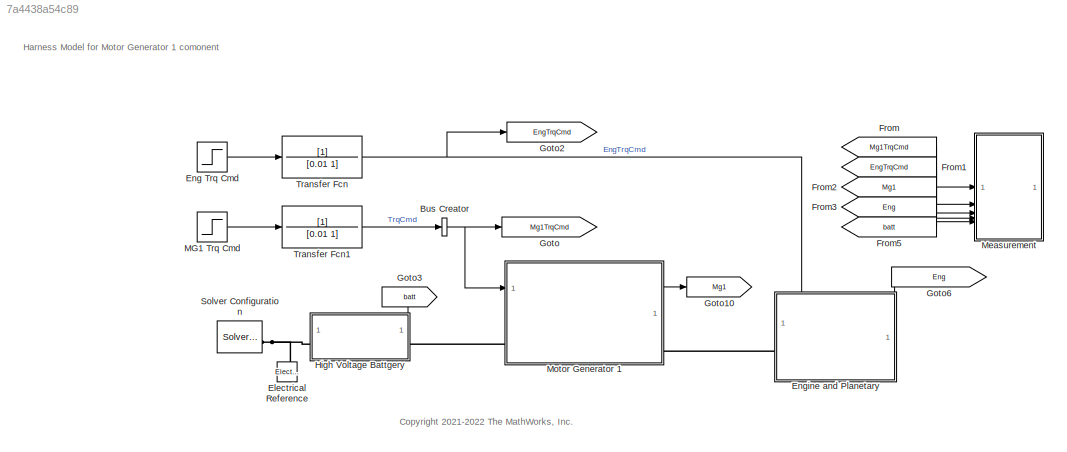
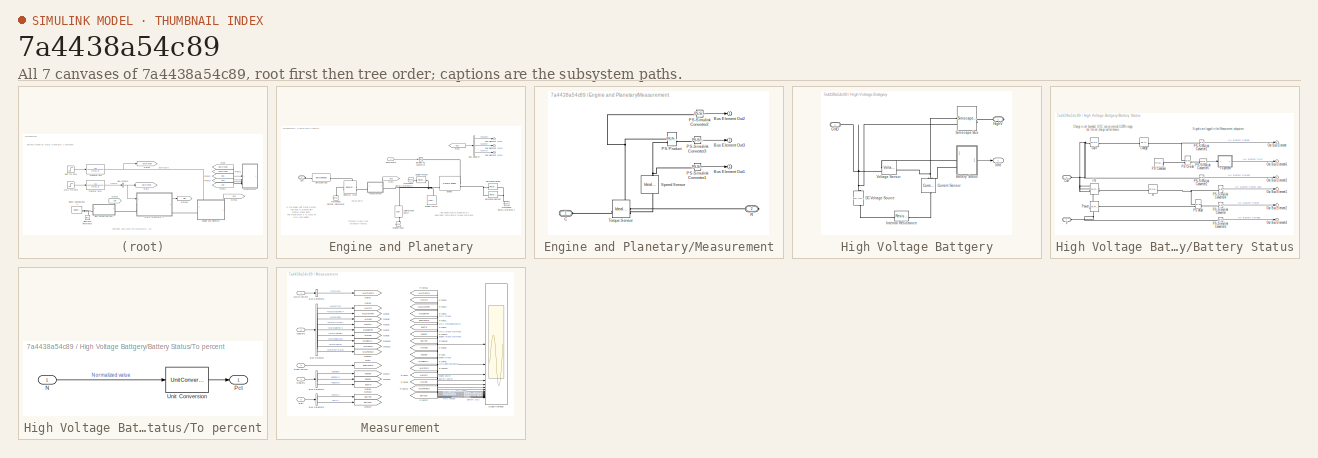
[diagram: thumbnail index - all 7 canvases of the model, root first then tree order]
MODEL mdl_7a4438a54c89
KIND model
CONFIG AbsTol = 1e-3
CONFIG EnableMultiTasking = off
CONFIG FixedStep = auto
CONFIG MaxStep = auto
CONFIG MinStep = auto
CONFIG PreLoadFcn = MotorGenerator1_Component_harness_setup\n
CONFIG RelTol = 1e-3
CONFIG SampleTimeConstraint = Unconstrained
CONFIG SolverName = daessc
CONFIG StartTime = 0.0
CONFIG StopTime = 20
BLOCK [BusCreator] Bus Creator
  DisplayOption = bar
  InheritFromInputs = on
  Inputs = 1
BLOCK [Reference] Electrical Reference  REF=fl_lib/Electrical/Electrical Elements/Electrical Reference
  SourceBlock = fl_lib/Electrical/Electrical Elements/Electrical Reference
  SourceType = Electrical Reference
BLOCK [Step] Eng Trq Cmd
  After = 0
  AttributesFormatString = Before %<Before>\nTime %<Time>\nAfter %<After>
  Before = 100
  NameLocation = left
  SampleTime = 0
  Time = 10
BLOCK [SubSystem] Engine and Planetary
  PortSchema = {"entries":[{"content":{"sides":[{"content":{"connectorIds":["LConn1"]},"type":"ConnectorPlacement.EquallySpacedRectSide","uuid":"98e473f2-6fb6-4bf2-93a0-47b50a56d31a"},{"content":{"connectorIds":[],"side":"RIGHT"},"type":"ConnectorPlacement.EquallySpacedRectSide","uuid":"e7c78de6-faab-4a88-b22a-7c9a139264de"},{"content":{"connectorIds":["In1","Out1"],"side":"TOP"},"type":"ConnectorPlacement.Equal...<+249ch>
BLOCK [Outport] Engine and Planetary/Bus Element Out1
  AttributesFormatString = %<Unit>
BLOCK [Outport] Engine and Planetary/Bus Element Out2
  AttributesFormatString = %<Unit>
BLOCK [Outport] Engine and Planetary/Bus Element Out3
  AttributesFormatString = %<Unit>
BLOCK [BusSelector] Engine and Planetary/Bus Selector
  OutputSignals = EngSpd,EngPwr,EngTrq
BLOCK [Inport] Engine and Planetary/EngTrqCmd
  NameLocation = left
BLOCK [Reference] Engine and Planetary/Engine  REF=sdl_lib/Engines & Motors/Generic Engine
  SourceBlock = sdl_lib/Engines & Motors/Generic Engine
  SourceType = Generic Engine
BLOCK [Reference] Engine and Planetary/Engine Friction  REF=fl_lib/Mechanical/Rotational Elements/Rotational Damper
  SourceBlock = fl_lib/Mechanical/Rotational Elements/Rotational Damper
  SourceType = Rotational Damper
BLOCK [Reference] Engine and Planetary/Engine Inertia  REF=fl_lib/Mechanical/Rotational Elements/Inertia
  AttributesFormatString = %<inertia> (%<inertia_unit>)\n%<w> (%<w_unit>)\nPriority: %<w_priority>
  SourceBlock = fl_lib/Mechanical/Rotational Elements/Inertia
  SourceType = Inertia
BLOCK [Reference] Engine and Planetary/Flywheel Case  REF=fl_lib/Mechanical/Rotational Elements/Mechanical
Rotational Reference
  SourceBlock = fl_lib/Mechanical/Rotational Elements/Mechanical\nRotational Reference
  SourceType = Mechanical\nRotational Reference
BLOCK [From] Engine and Planetary/From
  GotoTag = Eng
BLOCK [Goto] Engine and Planetary/Goto
  GotoTag = Eng
BLOCK [SubSystem] Engine and Planetary/Measurement
  PortSchema = {"entries":[{"content":{"sides":[{"content":{"connectorIds":["LConn1"]},"type":"ConnectorPlacement.EquallySpacedRectSide","uuid":"98e473f2-6fb6-4bf2-93a0-47b50a56d31a"},{"content":{"connectorIds":["RConn1"],"side":"RIGHT"},"type":"ConnectorPlacement.EquallySpacedRectSide","uuid":"e7c78de6-faab-4a88-b22a-7c9a139264de"},{"content":{"connectorIds":["Out1"],"side":"TOP"},"type":"ConnectorPlacement.Equ...<+251ch>
BLOCK [Outport] Engine and Planetary/Measurement/Bus Element Out1
  AttributesFormatString = %<Unit>
BLOCK [Outport] Engine and Planetary/Measurement/Bus Element Out2
  AttributesFormatString = %<Unit>
BLOCK [Outport] Engine and Planetary/Measurement/Bus Element Out3
  AttributesFormatString = %<Unit>
BLOCK [PMIOPort] Engine and Planetary/Measurement/C
  Side = Left
BLOCK [Reference] Engine and Planetary/Measurement/PS Product  REF=fl_lib/Physical Signals/Functions/PS Product
  SourceBlock = fl_lib/Physical Signals/Functions/PS Product
  SourceType = PS Product
BLOCK [Reference] Engine and Planetary/Measurement/PS-Simulink Converter1  REF=nesl_utility/PS-Simulink
Converter
  AttributesFormatString = %<Unit>
  SourceBlock = nesl_utility/PS-Simulink\nConverter
  SourceType = PS-Simulink\nConverter
BLOCK [Reference] Engine and Planetary/Measurement/PS-Simulink Converter2  REF=nesl_utility/PS-Simulink
Converter
  AttributesFormatString = %<Unit>
  SourceBlock = nesl_utility/PS-Simulink\nConverter
  SourceType = PS-Simulink\nConverter
BLOCK [Reference] Engine and Planetary/Measurement/PS-Simulink Converter3  REF=nesl_utility/PS-Simulink
Converter
  AttributesFormatString = %<Unit>
  SourceBlock = nesl_utility/PS-Simulink\nConverter
  SourceType = PS-Simulink\nConverter
BLOCK [PMIOPort] Engine and Planetary/Measurement/R
  Port = 2
  Side = Right
BLOCK [Reference] Engine and Planetary/Measurement/Speed Sensor  REF=fl_lib/Mechanical/Mechanical Sensors/Ideal Rotational
Motion Sensor
  NameLocation = left
  SourceBlock = fl_lib/Mechanical/Mechanical Sensors/Ideal Rotational\nMotion Sensor
  SourceType = Ideal Rotational\nMotion Sensor
BLOCK [Reference] Engine and Planetary/Measurement/Torque Sensor  REF=fl_lib/Mechanical/Mechanical Sensors/Ideal Torque Sensor
  SourceBlock = fl_lib/Mechanical/Mechanical Sensors/Ideal Torque Sensor
  SourceType = Ideal Torque Sensor
BLOCK [Reference] Engine and Planetary/Mechanical Rotational Reference  REF=fl_lib/Mechanical/Rotational Elements/Mechanical
Rotational Reference
  NameLocation = left
  SourceBlock = fl_lib/Mechanical/Rotational Elements/Mechanical\nRotational Reference
  SourceType = Mechanical\nRotational Reference
BLOCK [Reference] Engine and Planetary/Mechanical Rotational Reference 1  REF=fl_lib/Mechanical/Rotational Elements/Mechanical
Rotational Reference
  SourceBlock = fl_lib/Mechanical/Rotational Elements/Mechanical\nRotational Reference
  SourceType = Mechanical\nRotational Reference
BLOCK [Reference] Engine and Planetary/Mechanical Rotational Reference 2  REF=fl_lib/Mechanical/Rotational Elements/Mechanical
Rotational Reference
  NameLocation = left
  SourceBlock = fl_lib/Mechanical/Rotational Elements/Mechanical\nRotational Reference
  SourceType = Mechanical\nRotational Reference
BLOCK [Reference] Engine and Planetary/Planetary Gear  REF=sdl_lib/Gears/Planetary Gear
  NameLocation = top
  SourceBlock = sdl_lib/Gears/Planetary Gear
  SourceType = Planetary Gear
BLOCK [Reference] Engine and Planetary/Rotational Damper  REF=fl_lib/Mechanical/Rotational Elements/Rotational Damper
  SourceBlock = fl_lib/Mechanical/Rotational Elements/Rotational Damper
  SourceType = Rotational Damper
BLOCK [Reference] Engine and Planetary/Rotational Spring  REF=fl_lib/Mechanical/Rotational Elements/Rotational Spring
  AttributesFormatString = Deformation priority: %<phi_priority>
  NameLocation = top
  SourceBlock = fl_lib/Mechanical/Rotational Elements/Rotational Spring
  SourceType = Rotational Spring
BLOCK [SimscapeBus] Engine and Planetary/Simscape Bus
  ConnectionType = Bus: Bus_Rotational
  HierarchyStrings = AngSpd
BLOCK [Reference] Engine and Planetary/Simulink-PS Converter  REF=nesl_utility/Simulink-PS
Converter
  AttributesFormatString = %<Unit>
  SourceBlock = nesl_utility/Simulink-PS\nConverter
  SourceType = Simulink-PS\nConverter
BLOCK [PMIOPort] Engine and Planetary/Sun
  Side = Left
BLOCK [Reference] Engine and Planetary/Unidirectional Clutch  REF=sdl_lib/Clutches/Unidirectional
Clutch
  AttributesFormatString = %<initial_state_locked>
  NameLocation = left
  SourceBlock = sdl_lib/Clutches/Unidirectional\nClutch
  SourceType = Unidirectional\nClutch
BLOCK [From] From
  GotoTag = Mg1TrqCmd
  NameLocation = left
BLOCK [From] From1
  GotoTag = EngTrqCmd
  NameLocation = left
BLOCK [From] From2
  GotoTag = Mg1
  NameLocation = left
BLOCK [From] From3
  GotoTag = Eng
  NameLocation = left
BLOCK [From] From5
  GotoTag = batt
  NameLocation = left
BLOCK [Goto] Goto
  GotoTag = Mg1TrqCmd
  NameLocation = top
BLOCK [Goto] Goto10
  GotoTag = Mg1
  NameLocation = top
BLOCK [Goto] Goto2
  GotoTag = EngTrqCmd
  NameLocation = right
BLOCK [Goto] Goto3
  GotoTag = batt
  NameLocation = top
BLOCK [Goto] Goto6
  GotoTag = Eng
BLOCK [SubSystem] High Voltage Battgery
  PortSchema = {"entries":[{"content":{"sides":[{"content":{"connectorIds":["LConn1"]},"type":"ConnectorPlacement.EquallySpacedRectSide","uuid":"8acd7e9a-bb08-4de6-aa14-0989ebba81b9"},{"content":{"connectorIds":["RConn1"],"side":"RIGHT"},"type":"ConnectorPlacement.EquallySpacedRectSide","uuid":"f80e1afc-966f-4d6b-84f9-f0b60dd6f20c"},{"content":{"connectorIds":["Out1"],"side":"TOP"},"type":"ConnectorPlacement.Equ...<+251ch>
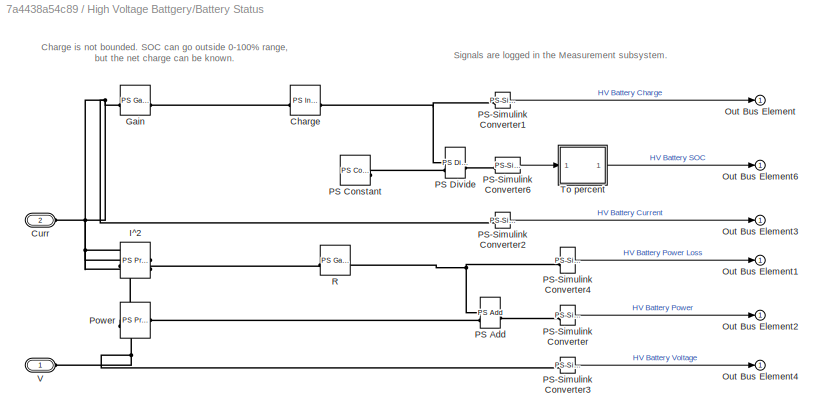
BLOCK [SubSystem] High Voltage Battgery/Battery Status
BLOCK [Reference] High Voltage Battgery/Battery Status/Charge  REF=fl_lib/Physical Signals/Linear Operators/PS Integrator
  AttributesFormatString = %<x0> [%<x0_unit>]
  SourceBlock = fl_lib/Physical Signals/Linear Operators/PS Integrator
  SourceType = PS Integrator
BLOCK [PMIOPort] High Voltage Battgery/Battery Status/Curr
  Port = 2
  Side = Left
BLOCK [Reference] High Voltage Battgery/Battery Status/Gain  REF=fl_lib/Physical Signals/Functions/PS Gain
  AttributesFormatString = %<gain>
  SourceBlock = fl_lib/Physical Signals/Functions/PS Gain
  SourceType = PS Gain
BLOCK [Reference] High Voltage Battgery/Battery Status/I^2  REF=fl_lib/Physical Signals/Functions/PS Product
  SourceBlock = fl_lib/Physical Signals/Functions/PS Product
  SourceType = PS Product
BLOCK [Outport] High Voltage Battgery/Battery Status/Out Bus Element
  AttributesFormatString = %<Unit>
BLOCK [Outport] High Voltage Battgery/Battery Status/Out Bus Element1
  AttributesFormatString = %<Unit>
BLOCK [Outport] High Voltage Battgery/Battery Status/Out Bus Element2
  AttributesFormatString = %<Unit>
BLOCK [Outport] High Voltage Battgery/Battery Status/Out Bus Element3
  AttributesFormatString = %<Unit>
BLOCK [Outport] High Voltage Battgery/Battery Status/Out Bus Element4
  AttributesFormatString = %<Unit>
BLOCK [Outport] High Voltage Battgery/Battery Status/Out Bus Element6
  AttributesFormatString = %<Unit>
BLOCK [Reference] High Voltage Battgery/Battery Status/PS Add  REF=fl_lib/Physical Signals/Functions/PS Add
  SourceBlock = fl_lib/Physical Signals/Functions/PS Add
  SourceType = PS Add
BLOCK [Reference] High Voltage Battgery/Battery Status/PS Constant  REF=fl_lib/Physical Signals/Sources/PS Constant
  AttributesFormatString = %<constant> [%<constant_unit>]
  NameLocation = left
  SourceBlock = fl_lib/Physical Signals/Sources/PS Constant
  SourceType = PS Constant
BLOCK [Reference] High Voltage Battgery/Battery Status/PS Divide  REF=fl_lib/Physical Signals/Functions/PS Divide
  SourceBlock = fl_lib/Physical Signals/Functions/PS Divide
  SourceType = PS Divide
BLOCK [Reference] High Voltage Battgery/Battery Status/PS-Simulink Converter  REF=nesl_utility/PS-Simulink
Converter
  AttributesFormatString = %<Unit>
  SourceBlock = nesl_utility/PS-Simulink\nConverter
  SourceType = PS-Simulink\nConverter
BLOCK [Reference] High Voltage Battgery/Battery Status/PS-Simulink Converter1  REF=nesl_utility/PS-Simulink
Converter
  AttributesFormatString = %<Unit>
  SourceBlock = nesl_utility/PS-Simulink\nConverter
  SourceType = PS-Simulink\nConverter
BLOCK [Reference] High Voltage Battgery/Battery Status/PS-Simulink Converter2  REF=nesl_utility/PS-Simulink
Converter
  AttributesFormatString = %<Unit>
  SourceBlock = nesl_utility/PS-Simulink\nConverter
  SourceType = PS-Simulink\nConverter
BLOCK [Reference] High Voltage Battgery/Battery Status/PS-Simulink Converter3  REF=nesl_utility/PS-Simulink
Converter
  AttributesFormatString = %<Unit>
  SourceBlock = nesl_utility/PS-Simulink\nConverter
  SourceType = PS-Simulink\nConverter
BLOCK [Reference] High Voltage Battgery/Battery Status/PS-Simulink Converter4  REF=nesl_utility/PS-Simulink
Converter
  AttributesFormatString = %<Unit>
  SourceBlock = nesl_utility/PS-Simulink\nConverter
  SourceType = PS-Simulink\nConverter
BLOCK [Reference] High Voltage Battgery/Battery Status/PS-Simulink Converter6  REF=nesl_utility/PS-Simulink
Converter
  AttributesFormatString = %<Unit>
  SourceBlock = nesl_utility/PS-Simulink\nConverter
  SourceType = PS-Simulink\nConverter
BLOCK [Reference] High Voltage Battgery/Battery Status/Power  REF=fl_lib/Physical Signals/Functions/PS Product
  SourceBlock = fl_lib/Physical Signals/Functions/PS Product
  SourceType = PS Product
BLOCK [Reference] High Voltage Battgery/Battery Status/R  REF=fl_lib/Physical Signals/Functions/PS Gain
  AttributesFormatString = %<gain> [%<gain_unit>]
  SourceBlock = fl_lib/Physical Signals/Functions/PS Gain
  SourceType = PS Gain
BLOCK [SubSystem] High Voltage Battgery/Battery Status/To percent
  ShowPortLabels = FromPortBlockName
BLOCK [Inport] High Voltage Battgery/Battery Status/To percent/N
BLOCK [Outport] High Voltage Battgery/Battery Status/To percent/Pct
  AttributesFormatString = %<Unit>
  Unit = %
BLOCK [UnitConversion] High Voltage Battgery/Battery Status/To percent/Unit Conversion
BLOCK [PMIOPort] High Voltage Battgery/Battery Status/V
  Side = Left
BLOCK [Reference] High Voltage Battgery/Current Sensor  REF=fl_lib/Electrical/Electrical Sensors/Current Sensor
  NameLocation = right
  SourceBlock = fl_lib/Electrical/Electrical Sensors/Current Sensor
  SourceType = Current Sensor
BLOCK [Reference] High Voltage Battgery/DC Voltage Source  REF=fl_lib/Electrical/Electrical Sources/DC Voltage Source
  AttributesFormatString = %<v0> [%<v0_unit>]
  NameLocation = right
  SourceBlock = fl_lib/Electrical/Electrical Sources/DC Voltage Source
  SourceType = DC Voltage Source
BLOCK [PMIOPort] High Voltage Battgery/GND
  Side = Left
BLOCK [PMIOPort] High Voltage Battgery/HighV
  Port = 2
  Side = Right
BLOCK [Outport] High Voltage Battgery/Info
BLOCK [Reference] High Voltage Battgery/Internal Resistance  REF=fl_lib/Electrical/Electrical Elements/Resistor
  AttributesFormatString = %<R> [%<R_unit>]
  SourceBlock = fl_lib/Electrical/Electrical Elements/Resistor
  SourceType = Resistor
BLOCK [SimscapeBus] High Voltage Battgery/Simscape Bus
  AttributesFormatString = %<ConnectionType>
  ConnectionType = Bus: Bus_HighVoltage
  HierarchyStrings = Plus;Minus
BLOCK [Reference] High Voltage Battgery/Voltage Sensor  REF=fl_lib/Electrical/Electrical Sensors/Voltage Sensor
  SourceBlock = fl_lib/Electrical/Electrical Sensors/Voltage Sensor
  SourceType = Voltage Sensor
BLOCK [Step] MG1 Trq Cmd
  After = -5
  AttributesFormatString = Before %<Before>\nTime %<Time>\nAfter %<After>
  NameLocation = left
  SampleTime = 0
  Time = 15
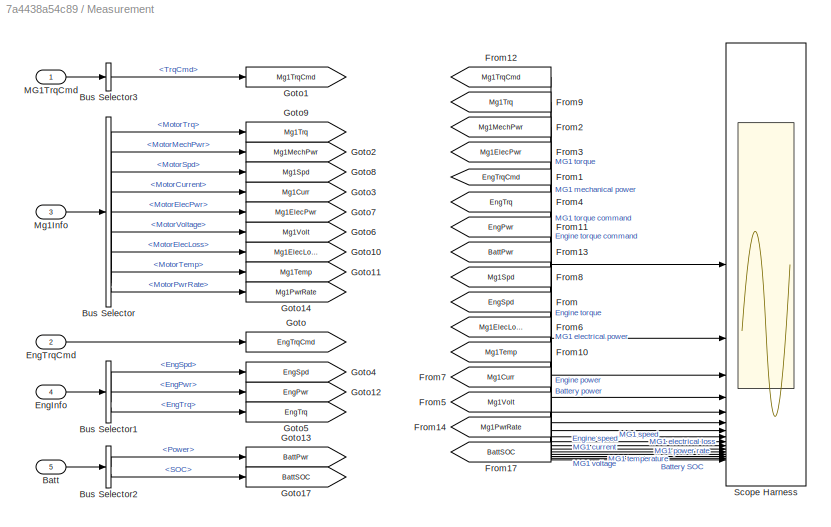
BLOCK [SubSystem] Measurement
BLOCK [Inport] Measurement/Batt
  NameLocation = left
  Port = 5
BLOCK [BusSelector] Measurement/Bus Selector
  OutputSignals = MotorTrq,MotorMechPwr,MotorSpd,MotorCurrent,MotorElecPwr,MotorVoltage,MotorElecLoss,MotorTemp,MotorPwrRate
BLOCK [BusSelector] Measurement/Bus Selector1
  OutputSignals = EngSpd,EngPwr,EngTrq
BLOCK [BusSelector] Measurement/Bus Selector2
  OutputSignals = Power,SOC
BLOCK [BusSelector] Measurement/Bus Selector3
  OutputSignals = TrqCmd
BLOCK [Inport] Measurement/EngInfo
  NameLocation = left
  Port = 4
BLOCK [Inport] Measurement/EngTrqCmd
  NameLocation = left
  Port = 2
BLOCK [From] Measurement/From
  GotoTag = EngSpd
  NameLocation = left
BLOCK [From] Measurement/From1
  GotoTag = EngTrqCmd
  NameLocation = left
BLOCK [From] Measurement/From10
  GotoTag = Mg1Temp
  NameLocation = left
BLOCK [From] Measurement/From11
  GotoTag = EngPwr
  NameLocation = left
BLOCK [From] Measurement/From12
  GotoTag = Mg1TrqCmd
  NameLocation = left
BLOCK [From] Measurement/From13
  GotoTag = BattPwr
  NameLocation = left
BLOCK [From] Measurement/From14
  GotoTag = Mg1PwrRate
BLOCK [From] Measurement/From17
  GotoTag = BattSOC
  NameLocation = left
BLOCK [From] Measurement/From2
  GotoTag = Mg1MechPwr
  NameLocation = left
BLOCK [From] Measurement/From3
  GotoTag = Mg1ElecPwr
  NameLocation = left
BLOCK [From] Measurement/From4
  GotoTag = EngTrq
  NameLocation = left
BLOCK [From] Measurement/From5
  GotoTag = Mg1Volt
  NameLocation = left
BLOCK [From] Measurement/From6
  GotoTag = Mg1ElecLoss
  NameLocation = left
BLOCK [From] Measurement/From7
  GotoTag = Mg1Curr
  NameLocation = left
BLOCK [From] Measurement/From8
  GotoTag = Mg1Spd
  NameLocation = left
BLOCK [From] Measurement/From9
  GotoTag = Mg1Trq
  NameLocation = left
BLOCK [Goto] Measurement/Goto
  GotoTag = EngTrqCmd
  NameLocation = right
BLOCK [Goto] Measurement/Goto1
  GotoTag = Mg1TrqCmd
  NameLocation = right
BLOCK [Goto] Measurement/Goto10
  GotoTag = Mg1ElecLoss
  NameLocation = right
BLOCK [Goto] Measurement/Goto11
  GotoTag = Mg1Temp
  NameLocation = right
BLOCK [Goto] Measurement/Goto12
  GotoTag = EngPwr
  NameLocation = right
BLOCK [Goto] Measurement/Goto13
  GotoTag = BattPwr
  NameLocation = right
BLOCK [Goto] Measurement/Goto14
  GotoTag = Mg1PwrRate
  NameLocation = right
BLOCK [Goto] Measurement/Goto17
  GotoTag = BattSOC
  NameLocation = right
BLOCK [Goto] Measurement/Goto2
  GotoTag = Mg1MechPwr
  NameLocation = right
BLOCK [Goto] Measurement/Goto3
  GotoTag = Mg1Curr
  NameLocation = right
BLOCK [Goto] Measurement/Goto4
  GotoTag = EngSpd
  NameLocation = right
BLOCK [Goto] Measurement/Goto5
  GotoTag = EngTrq
  NameLocation = right
BLOCK [Goto] Measurement/Goto6
  GotoTag = Mg1Volt
  NameLocation = right
BLOCK [Goto] Measurement/Goto7
  GotoTag = Mg1ElecPwr
  NameLocation = right
BLOCK [Goto] Measurement/Goto8
  GotoTag = Mg1Spd
  NameLocation = right
BLOCK [Goto] Measurement/Goto9
  GotoTag = Mg1Trq
  NameLocation = right
BLOCK [Inport] Measurement/MG1TrqCmd
  NameLocation = left
BLOCK [Inport] Measurement/Mg1Info
  NameLocation = left
  Port = 3
BLOCK [Scope] Measurement/Scope Harness
  Floating = off
  NumInputPorts = 16
  ScopeSpecificationString = Simulink.scopes.TimeScopeBlockCfg('CurrentConfiguration', extmgr.ConfigurationSet(extmgr.Configuration('Core','General UI',true),extmgr.Configuration('Core','Source UI',true),extmgr.Configuration('Sources','WiredSimulink',true),extmgr.Configuration('Visuals','Time Domain',true,'SerializedDisplays',{struct('MinYLimReal','-5.625','MaxYLimReal','0.625','YLabelReal','','MinYLimMag','0.00000','MaxYLimM...<+11999ch>
BLOCK [SubSystem] Motor Generator 1
  PortSchema = {"entries":[{"content":{"sides":[{"content":{"connectorIds":["In1","LConn1"]},"type":"ConnectorPlacement.EquallySpacedRectSide","uuid":"02d16a10-ccfb-4288-a5a1-1144159c5ca2"},{"content":{"connectorIds":["Out1","LConn2"],"side":"RIGHT"},"type":"ConnectorPlacement.EquallySpacedRectSide","uuid":"b2601986-efe5-4f5e-bd54-3f5cb03e9252"},{"content":{"side":"TOP"},"type":"ConnectorPlacement.EquallySpacedR...<+240ch>
  ReferencedSubsystem = MotorDriveUnit_refsub_Basic
  T = initial.MG1_AirTemp_K
  T_eff = motorGenerator1.trq_eff_Nm
  Tc = motorGenerator1.responseTime_s
  Value = motorGenerator1.powerMax_kW
  eff = motorGenerator1.efficiency_pct
  k = motorGenerator1.dampSpringStiffness_Nm_per_rad
  mu_visc = motorGenerator1.dampSpringFriction_Nm_per_rpm
  temperature = initial.MG1_Temperature_K
  thermal_mass = motorGenerator1.thermalMass_J_perK
  torque_max = motorGenerator1.trqMax_Nm
  w_eff = motorGenerator1.spd_eff_rpm
  w_tol = smoothing.MG1_dampSpringVelTol_rpm
BLOCK [Reference] Solver Configuration  REF=nesl_utility/Solver
Configuration
  AttributesFormatString = Local solver %<UseLocalSolver>
  NameLocation = top
  SourceBlock = nesl_utility/Solver\nConfiguration
  SourceType = Solver\nConfiguration
BLOCK [TransferFcn] Transfer Fcn
  Denominator = [0.01 1]
BLOCK [TransferFcn] Transfer Fcn1
  Denominator = [0.01 1]
ANNOTATION (root): <copyright redacted>
ANNOTATION (root): Harness Model for Motor Generator 1 comonent
ANNOTATION Engine and Planetary: Idle speed control should be off when input command is torque command.
ANNOTATION Engine and Planetary: In the power-split hybrid system, ring gear is meshed with counter driven gear. This model omits it to focus on MG1 and engine.
ANNOTATION Engine and Planetary: Prevents crank from rotating in reverse.
ANNOTATION Engine and Planetary: Sprag Clutch
ANNOTATION High Voltage Battgery/Battery Status: Charge is not bounded. SOC can go outside 0-100% range, but the net charge can be known.
ANNOTATION High Voltage Battgery/Battery Status: Signals are logged in the Measurement subsystem.
NET Bus Creator:1 -> Goto:1, Motor Generator 1:1
LINE Eng Trq Cmd:1 -> Transfer Fcn:1
LINE Engine and Planetary/Bus Selector:1 -> Engine and Planetary/Bus Element Out1:1
LINE Engine and Planetary/Bus Selector:2 -> Engine and Planetary/Bus Element Out3:1
LINE Engine and Planetary/Bus Selector:3 -> Engine and Planetary/Bus Element Out2:1
LINE Engine and Planetary/EngTrqCmd:1 -> Engine and Planetary/Simulink-PS Converter:1
LINE Engine and Planetary/From:1 -> Engine and Planetary/Bus Selector:1
LINE Engine and Planetary/Measurement/PS-Simulink Converter1:1 -> Engine and Planetary/Measurement/Bus Element Out1:1
LINE Engine and Planetary/Measurement/PS-Simulink Converter2:1 -> Engine and Planetary/Measurement/Bus Element Out2:1
LINE Engine and Planetary/Measurement/PS-Simulink Converter3:1 -> Engine and Planetary/Measurement/Bus Element Out3:1
LINE Engine and Planetary/Measurement:1 -> Engine and Planetary/Goto:1
LINE Engine and Planetary:1 -> Goto6:1
LINE From1:1 -> Measurement:2
LINE From2:1 -> Measurement:3
LINE From3:1 -> Measurement:4
LINE From5:1 -> Measurement:5
LINE From:1 -> Measurement:1
LINE High Voltage Battgery/Battery Status/PS-Simulink Converter1:1 -> High Voltage Battgery/Battery Status/Out Bus Element:1
LINE High Voltage Battgery/Battery Status/PS-Simulink Converter2:1 -> High Voltage Battgery/Battery Status/Out Bus Element3:1
LINE High Voltage Battgery/Battery Status/PS-Simulink Converter3:1 -> High Voltage Battgery/Battery Status/Out Bus Element4:1
LINE High Voltage Battgery/Battery Status/PS-Simulink Converter4:1 -> High Voltage Battgery/Battery Status/Out Bus Element1:1
LINE High Voltage Battgery/Battery Status/PS-Simulink Converter6:1 -> High Voltage Battgery/Battery Status/To percent:1
LINE High Voltage Battgery/Battery Status/PS-Simulink Converter:1 -> High Voltage Battgery/Battery Status/Out Bus Element2:1
LINE High Voltage Battgery/Battery Status/To percent/N:1 -> High Voltage Battgery/Battery Status/To percent/Unit Conversion:1
LINE High Voltage Battgery/Battery Status/To percent/Unit Conversion:1 -> High Voltage Battgery/Battery Status/To percent/Pct:1
LINE High Voltage Battgery/Battery Status/To percent:1 -> High Voltage Battgery/Battery Status/Out Bus Element6:1
LINE High Voltage Battgery/Battery Status:1 -> High Voltage Battgery/Info:1
LINE High Voltage Battgery:1 -> Goto3:1
LINE MG1 Trq Cmd:1 -> Transfer Fcn1:1
LINE Measurement/Batt:1 -> Measurement/Bus Selector2:1
LINE Measurement/Bus Selector1:1 -> Measurement/Goto4:1
LINE Measurement/Bus Selector1:2 -> Measurement/Goto12:1
LINE Measurement/Bus Selector1:3 -> Measurement/Goto5:1
LINE Measurement/Bus Selector2:1 -> Measurement/Goto13:1
LINE Measurement/Bus Selector2:2 -> Measurement/Goto17:1
LINE Measurement/Bus Selector3:1 -> Measurement/Goto1:1
LINE Measurement/Bus Selector:1 -> Measurement/Goto9:1
LINE Measurement/Bus Selector:2 -> Measurement/Goto2:1
LINE Measurement/Bus Selector:3 -> Measurement/Goto8:1
LINE Measurement/Bus Selector:4 -> Measurement/Goto3:1
LINE Measurement/Bus Selector:5 -> Measurement/Goto7:1
LINE Measurement/Bus Selector:6 -> Measurement/Goto6:1
LINE Measurement/Bus Selector:7 -> Measurement/Goto10:1
LINE Measurement/Bus Selector:8 -> Measurement/Goto11:1
LINE Measurement/Bus Selector:9 -> Measurement/Goto14:1
LINE Measurement/EngInfo:1 -> Measurement/Bus Selector1:1
LINE Measurement/EngTrqCmd:1 -> Measurement/Goto:1
LINE Measurement/From10:1 -> Measurement/Scope Harness:12
LINE Measurement/From11:1 -> Measurement/Scope Harness:7
LINE Measurement/From12:1 -> Measurement/Scope Harness:1
LINE Measurement/From13:1 -> Measurement/Scope Harness:8
LINE Measurement/From14:1 -> Measurement/Scope Harness:15
LINE Measurement/From17:1 -> Measurement/Scope Harness:16
LINE Measurement/From1:1 -> Measurement/Scope Harness:5
LINE Measurement/From2:1 -> Measurement/Scope Harness:3
LINE Measurement/From3:1 -> Measurement/Scope Harness:4
LINE Measurement/From4:1 -> Measurement/Scope Harness:6
LINE Measurement/From5:1 -> Measurement/Scope Harness:14
LINE Measurement/From6:1 -> Measurement/Scope Harness:11
LINE Measurement/From7:1 -> Measurement/Scope Harness:13
LINE Measurement/From8:1 -> Measurement/Scope Harness:9
LINE Measurement/From9:1 -> Measurement/Scope Harness:2
LINE Measurement/From:1 -> Measurement/Scope Harness:10
LINE Measurement/MG1TrqCmd:1 -> Measurement/Bus Selector3:1
LINE Measurement/Mg1Info:1 -> Measurement/Bus Selector:1
LINE Motor Generator 1:1 -> Goto10:1
LINE Transfer Fcn1:1 -> Bus Creator:1
NET Transfer Fcn:1 -> Engine and Planetary:1, Goto2:1
PNET net1: Electrical Reference:LConn1 -- High Voltage Battgery:LConn1 -- Solver Configuration:RConn1
PNET net2: Engine and Planetary/Engine Friction:LConn1 -- Engine and Planetary/Engine Inertia:LConn1 -- Engine and Planetary/Engine:RConn3 -- Engine and Planetary/Measurement:RConn1 -- Engine and Planetary/Unidirectional Clutch:LConn1
PLINE Engine and Planetary/Engine Friction:RConn1 -- Engine and Planetary/Mechanical Rotational Reference 2:LConn1
PLINE Engine and Planetary/Engine:LConn1 -- Engine and Planetary/Simulink-PS Converter:RConn1
PNET net3: Engine and Planetary/Engine:LConn2 -- Engine and Planetary/Rotational Damper:LConn1 -- Engine and Planetary/Rotational Spring:LConn1
PLINE Engine and Planetary/Flywheel Case:LConn1 -- Engine and Planetary/Unidirectional Clutch:RConn1
PLINE Engine and Planetary/Measurement/C:RConn1 -- Engine and Planetary/Measurement/Torque Sensor:RConn1
PNET net4: Engine and Planetary/Measurement/PS Product:LConn1 -- Engine and Planetary/Measurement/PS-Simulink Converter2:LConn1 -- Engine and Planetary/Measurement/Torque Sensor:RConn2
PNET net5: Engine and Planetary/Measurement/PS Product:LConn2 -- Engine and Planetary/Measurement/PS-Simulink Converter1:LConn1 -- Engine and Planetary/Measurement/Speed Sensor:RConn1
PLINE Engine and Planetary/Measurement/PS Product:RConn1 -- Engine and Planetary/Measurement/PS-Simulink Converter3:LConn1
PNET net6: Engine and Planetary/Measurement/R:RConn1 -- Engine and Planetary/Measurement/Speed Sensor:LConn1 -- Engine and Planetary/Measurement/Torque Sensor:LConn1
PLINE Engine and Planetary/Measurement:LConn1 -- Engine and Planetary/Planetary Gear:LConn1
PNET net7: Engine and Planetary/Mechanical Rotational Reference 1:LConn1 -- Engine and Planetary/Rotational Damper:RConn1 -- Engine and Planetary/Rotational Spring:RConn1
PLINE Engine and Planetary/Mechanical Rotational Reference:LConn1 -- Engine and Planetary/Planetary Gear:RConn1
PLINE Engine and Planetary/Planetary Gear:RConn2 -- Engine and Planetary/Simscape Bus:LConn1
PLINE Engine and Planetary/Simscape Bus:RConn1 -- Engine and Planetary/Sun:RConn1
PLINE Engine and Planetary:LConn1 -- Motor Generator 1:LConn2
PLINE High Voltage Battgery/Battery Status/Charge:LConn1 -- High Voltage Battgery/Battery Status/Gain:RConn1
PNET net8: High Voltage Battgery/Battery Status/Charge:RConn1 -- High Voltage Battgery/Battery Status/PS Divide:LConn1 -- High Voltage Battgery/Battery Status/PS-Simulink Converter1:LConn1
PNET net9: High Voltage Battgery/Battery Status/Curr:RConn1 -- High Voltage Battgery/Battery Status/Gain:LConn1 -- High Voltage Battgery/Battery Status/I^2:LConn1 -- High Voltage Battgery/Battery Status/I^2:LConn2 -- High Voltage Battgery/Battery Status/PS-Simulink Converter2:LConn1 -- High Voltage Battgery/Battery Status/Power:LConn2
PLINE High Voltage Battgery/Battery Status/I^2:RConn1 -- High Voltage Battgery/Battery Status/R:LConn1
PNET net10: High Voltage Battgery/Battery Status/PS Add:LConn1 -- High Voltage Battgery/Battery Status/PS-Simulink Converter4:LConn1 -- High Voltage Battgery/Battery Status/R:RConn1
PLINE High Voltage Battgery/Battery Status/PS Add:LConn2 -- High Voltage Battgery/Battery Status/Power:RConn1
PLINE High Voltage Battgery/Battery Status/PS Add:RConn1 -- High Voltage Battgery/Battery Status/PS-Simulink Converter:LConn1
PLINE High Voltage Battgery/Battery Status/PS Constant:RConn1 -- High Voltage Battgery/Battery Status/PS Divide:LConn2
PLINE High Voltage Battgery/Battery Status/PS Divide:RConn1 -- High Voltage Battgery/Battery Status/PS-Simulink Converter6:LConn1
PNET net11: High Voltage Battgery/Battery Status/PS-Simulink Converter3:LConn1 -- High Voltage Battgery/Battery Status/Power:LConn1 -- High Voltage Battgery/Battery Status/V:RConn1
PLINE High Voltage Battgery/Battery Status:LConn1 -- High Voltage Battgery/Voltage Sensor:RConn1
PLINE High Voltage Battgery/Battery Status:LConn2 -- High Voltage Battgery/Current Sensor:RConn1
PLINE High Voltage Battgery/Current Sensor:LConn1 -- High Voltage Battgery/Internal Resistance:RConn1
PNET net12: High Voltage Battgery/Current Sensor:RConn2 -- High Voltage Battgery/Simscape Bus:LConn1 -- High Voltage Battgery/Voltage Sensor:LConn1
PLINE High Voltage Battgery/DC Voltage Source:LConn1 -- High Voltage Battgery/Internal Resistance:LConn1
PNET net13: High Voltage Battgery/DC Voltage Source:RConn1 -- High Voltage Battgery/GND:RConn1 -- High Voltage Battgery/Simscape Bus:LConn2 -- High Voltage Battgery/Voltage Sensor:RConn2
PLINE High Voltage Battgery/HighV:RConn1 -- High Voltage Battgery/Simscape Bus:RConn1
PLINE High Voltage Battgery:RConn1 -- Motor Generator 1:LConn1
note: NET lines group one-source signal fan-out (src -> all destinations, sorted); 1:1 wires keep LINE; PNET lines group multi-terminal physical nets as a canonical sorted terminal list (undirected conserving connections); 2-terminal nets keep the pairwise PLINE form
